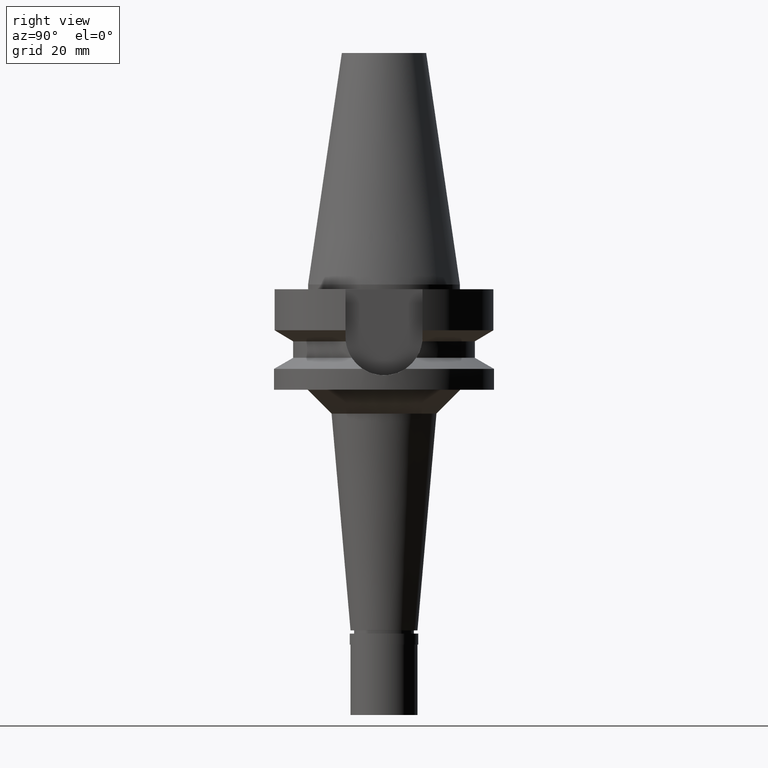
[diagram: clean part render]
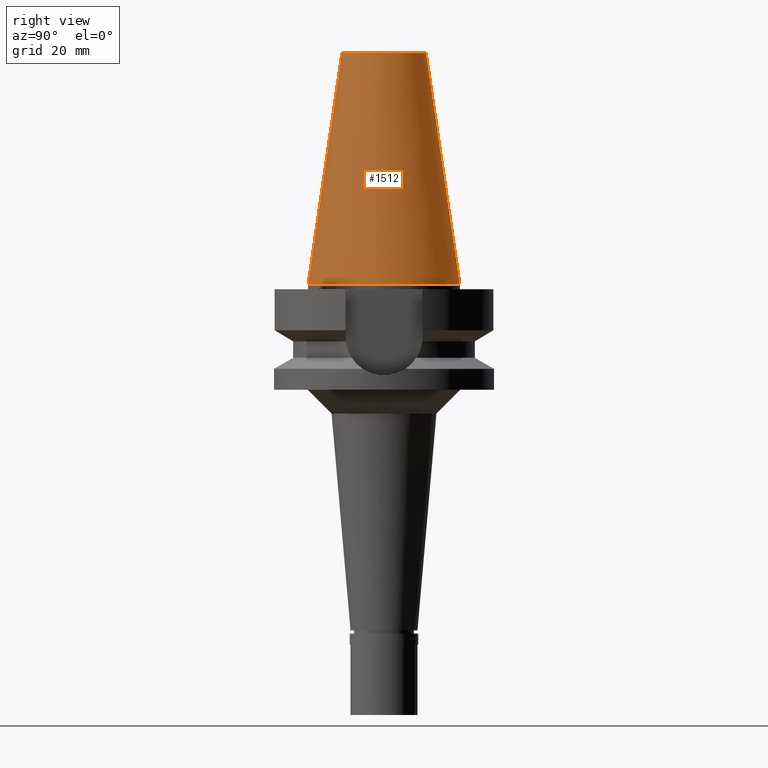
[diagram: same view with one face highlighted and labeled with its STEP entity id]
A machine part, right view. The second image highlights one B-rep face of the part: STEP entity #1512.
In plain terms, the highlighted conical surface has half-angle 8.297 deg.
Its self-contained STEP definition (entity closure, byte-faithful):
#23 = DIRECTION ( 'NONE',  ( 0.0000000000000000000, -0.1443043893539925626, -0.9895333461855498891 ) ) ;
#107 = AXIS2_PLACEMENT_3D ( 'NONE', #360, #1263, #895 ) ;
#143 = CARTESIAN_POINT ( 'NONE',  ( 0.0000000000000000000, 8.816791732783000768, 48.39999999999999858 ) ) ;
#250 = CIRCLE ( 'NONE', #107, 8.816791732783000768 ) ;
#265 = ORIENTED_EDGE ( 'NONE', *, *, #985, .T. ) ;
#324 = EDGE_LOOP ( 'NONE', ( #265, #1299, #646, #2161 ) ) ;
#336 = LINE ( 'NONE', #143, #1013 ) ;
#360 = CARTESIAN_POINT ( 'NONE',  ( 0.0000000000000000000, 1.521011324540999938E-14, 48.39999999999999858 ) ) ;
#468 = CARTESIAN_POINT ( 'NONE',  ( 0.0000000000000000000, -8.816791732783000768, 48.39999999999999858 ) ) ;
#513 = EDGE_CURVE ( 'NONE', #1217, #2659, #1458, .T. ) ;
#517 = DIRECTION ( 'NONE',  ( 0.0000000000000000000, -1.000000000000000000, 0.0000000000000000000 ) ) ;
#646 = ORIENTED_EDGE ( 'NONE', *, *, #1936, .F. ) ;
#742 = FACE_OUTER_BOUND ( 'NONE', #324, .T. ) ;
#764 = DIRECTION ( 'NONE',  ( 0.0000000000000000000, 0.0000000000000000000, -1.000000000000000000 ) ) ;
#895 = DIRECTION ( 'NONE',  ( 0.0000000000000000000, 1.000000000000000000, 0.0000000000000000000 ) ) ;
#985 = EDGE_CURVE ( 'NONE', #1136, #1217, #250, .T. ) ;
#1013 = VECTOR ( 'NONE', #1056, 1000.000000000000114 ) ;
#1056 = DIRECTION ( 'NONE',  ( 0.0000000000000000000, 0.1443043893539925626, -0.9895333461855498891 ) ) ;
#1082 = EDGE_CURVE ( 'NONE', #1136, #1935, #336, .T. ) ;
#1136 = VERTEX_POINT ( 'NONE', #2733 ) ;
#1146 = CARTESIAN_POINT ( 'NONE',  ( 0.0000000000000000000, 15.87500000000000000, -1.598721155459999993E-13 ) ) ;
#1167 = CARTESIAN_POINT ( 'NONE',  ( 0.0000000000000000000, 1.521011324540999938E-14, -3.694822225953000089E-13 ) ) ;
#1217 = VERTEX_POINT ( 'NONE', #468 ) ;
#1263 = DIRECTION ( 'NONE',  ( 0.0000000000000000000, 0.0000000000000000000, -1.000000000000000000 ) ) ;
#1299 = ORIENTED_EDGE ( 'NONE', *, *, #513, .T. ) ;
#1458 = LINE ( 'NONE', #1870, #1620 ) ;
#1512 = ADVANCED_FACE ( 'NONE', ( #742 ), #2628, .T. ) ;
#1530 = AXIS2_PLACEMENT_3D ( 'NONE', #2377, #764, #517 ) ;
#1620 = VECTOR ( 'NONE', #23, 1000.000000000000114 ) ;
#1860 = DIRECTION ( 'NONE',  ( 0.0000000000000000000, 1.000000000000000000, 0.0000000000000000000 ) ) ;
#1870 = CARTESIAN_POINT ( 'NONE',  ( 0.0000000000000000000, -8.816791732783000768, 48.39999999999999858 ) ) ;
#1935 = VERTEX_POINT ( 'NONE', #1146 ) ;
#1936 = EDGE_CURVE ( 'NONE', #1935, #2659, #2400, .T. ) ;
#2161 = ORIENTED_EDGE ( 'NONE', *, *, #1082, .F. ) ;
#2377 = CARTESIAN_POINT ( 'NONE',  ( 0.0000000000000000000, 1.521011324540999938E-14, 24.19999999999999929 ) ) ;
#2400 = CIRCLE ( 'NONE', #2768, 15.87500000000000000 ) ;
#2529 = DIRECTION ( 'NONE',  ( 0.0000000000000000000, 0.0000000000000000000, -1.000000000000000000 ) ) ;
#2599 = CARTESIAN_POINT ( 'NONE',  ( 0.0000000000000000000, -15.87500000000000000, -1.598721155459999993E-13 ) ) ;
#2628 = CONICAL_SURFACE ( 'NONE', #1530, 12.34589586639000025, 0.1448099680379422438 ) ;
#2659 = VERTEX_POINT ( 'NONE', #2599 ) ;
#2733 = CARTESIAN_POINT ( 'NONE',  ( 0.0000000000000000000, 8.816791732783000768, 48.39999999999999858 ) ) ;
#2768 = AXIS2_PLACEMENT_3D ( 'NONE', #1167, #2529, #1860 ) ;